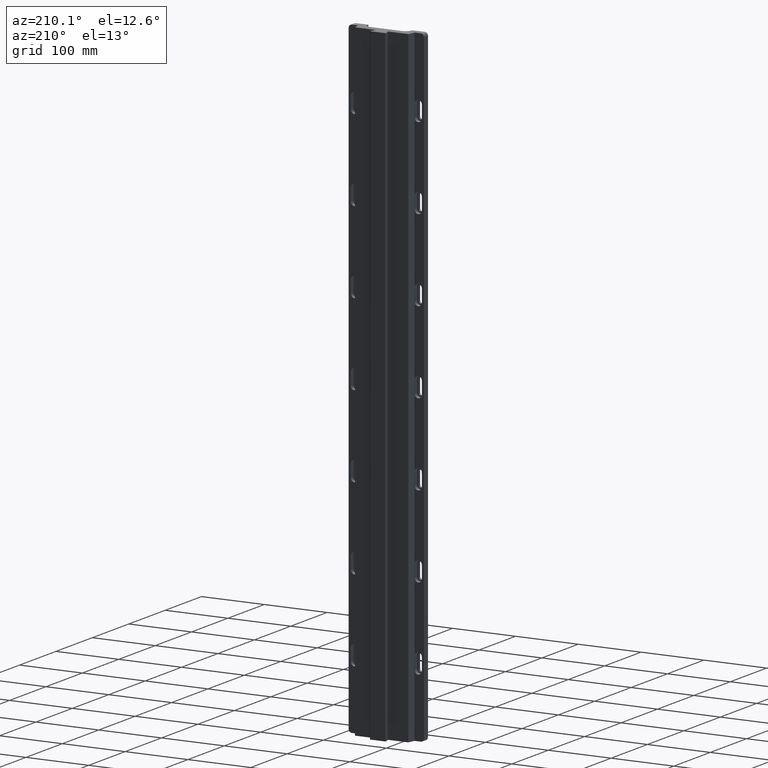
[diagram: clean part render]
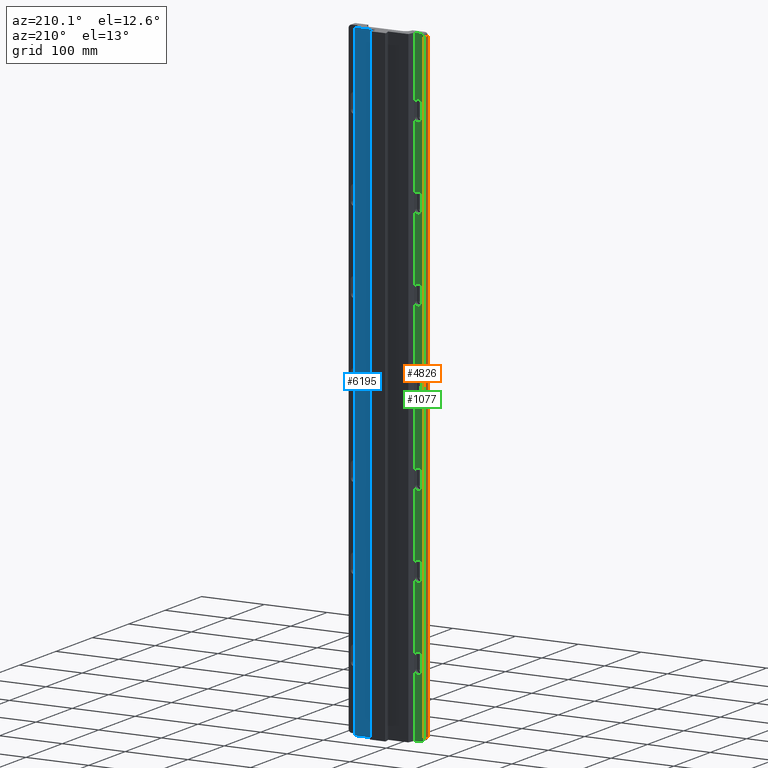
[diagram: same view with three faces highlighted in distinct colors, each labeled with its STEP entity id]
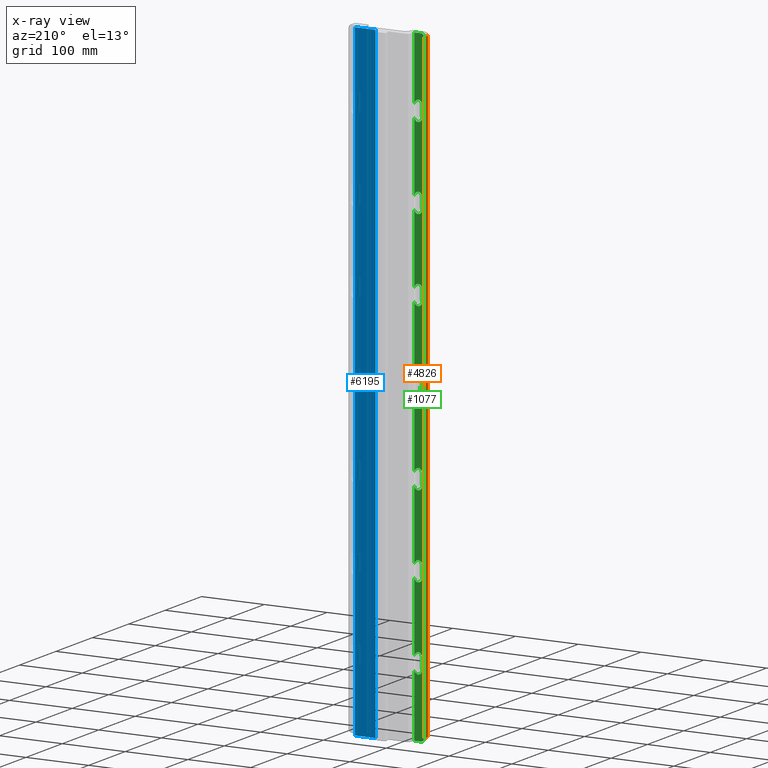
[diagram: x-ray of the same camera — body ghosted, the three highlighted faces saturated]
A machine part, auxiliary view with three faces highlighted in distinct colors.
The next image is the same camera in x-ray (body ghosted, the three faces saturated) — at least one of them is partly hidden behind the body in this view.
Their STEP definitions:

[orange] entity #4826 — the highlighted planar face has unit normal (1, 0, -0).
#19 = VERTEX_POINT ( 'NONE', #5639 ) ;
#113 = LINE ( 'NONE', #4858, #5061 ) ;
#130 = CARTESIAN_POINT ( 'NONE',  ( -60.00000000000000700, -6.938893903907228400E-015, 495.0000000000000000 ) ) ;
#601 = VECTOR ( 'NONE', #2288, 1000.000000000000000 ) ;
#616 = EDGE_LOOP ( 'NONE', ( #909, #4879, #750, #4154 ) ) ;
#665 = CARTESIAN_POINT ( 'NONE',  ( -60.00000000000000700, -6.938893903907228400E-015, 500.0000000000000000 ) ) ;
#750 = ORIENTED_EDGE ( 'NONE', *, *, #5763, .F. ) ;
#909 = ORIENTED_EDGE ( 'NONE', *, *, #1383, .T. ) ;
#1383 = EDGE_CURVE ( 'NONE', #4213, #4868, #113, .T. ) ;
#1503 = AXIS2_PLACEMENT_3D ( 'NONE', #665, #4680, #3115 ) ;
#1582 = CARTESIAN_POINT ( 'NONE',  ( -60.00000000000000700, -11.00000000000000500, 495.0000000000000000 ) ) ;
#1823 = DIRECTION ( 'NONE',  ( -0.0000000000000000000, -0.0000000000000000000, -1.000000000000000000 ) ) ;
#1997 = LINE ( 'NONE', #130, #6242 ) ;
#2179 = DIRECTION ( 'NONE',  ( -0.0000000000000000000, 1.000000000000000000, -0.0000000000000000000 ) ) ;
#2288 = DIRECTION ( 'NONE',  ( -0.0000000000000000000, -0.0000000000000000000, -1.000000000000000000 ) ) ;
#3115 = DIRECTION ( 'NONE',  ( -0.0000000000000000000, 0.0000000000000000000, -1.000000000000000000 ) ) ;
#3644 = VERTEX_POINT ( 'NONE', #1582 ) ;
#4154 = ORIENTED_EDGE ( 'NONE', *, *, #5114, .T. ) ;
#4200 = CARTESIAN_POINT ( 'NONE',  ( -60.00000000000000700, -11.00000000000000500, 500.0000000000000000 ) ) ;
#4213 = VERTEX_POINT ( 'NONE', #5741 ) ;
#4227 = FACE_OUTER_BOUND ( 'NONE', #616, .T. ) ;
#4305 = LINE ( 'NONE', #4200, #601 ) ;
#4608 = LINE ( 'NONE', #6029, #5228 ) ;
#4680 = DIRECTION ( 'NONE',  ( 1.000000000000000000, 0.0000000000000000000, -0.0000000000000000000 ) ) ;
#4826 = ADVANCED_FACE ( 'NONE', ( #4227 ), #6080, .F. ) ;
#4858 = CARTESIAN_POINT ( 'NONE',  ( -60.00000000000000700, -6.938893903907228400E-015, 500.0000000000000000 ) ) ;
#4868 = VERTEX_POINT ( 'NONE', #5680 ) ;
#4879 = ORIENTED_EDGE ( 'NONE', *, *, #5499, .T. ) ;
#5061 = VECTOR ( 'NONE', #1823, 1000.000000000000000 ) ;
#5114 = EDGE_CURVE ( 'NONE', #3644, #4213, #1997, .T. ) ;
#5228 = VECTOR ( 'NONE', #5474, 1000.000000000000000 ) ;
#5474 = DIRECTION ( 'NONE',  ( 0.0000000000000000000, -1.000000000000000000, 0.0000000000000000000 ) ) ;
#5499 = EDGE_CURVE ( 'NONE', #4868, #19, #4608, .T. ) ;
#5639 = CARTESIAN_POINT ( 'NONE',  ( -60.00000000000000700, -11.00000000000000500, -495.0000000000000000 ) ) ;
#5680 = CARTESIAN_POINT ( 'NONE',  ( -60.00000000000000700, -6.938893903907228400E-015, -495.0000000000000000 ) ) ;
#5741 = CARTESIAN_POINT ( 'NONE',  ( -60.00000000000000700, -6.938893903907228400E-015, 495.0000000000000000 ) ) ;
#5763 = EDGE_CURVE ( 'NONE', #3644, #19, #4305, .T. ) ;
#6029 = CARTESIAN_POINT ( 'NONE',  ( -60.00000000000000700, -6.938893903907228400E-015, -495.0000000000000000 ) ) ;
#6080 = PLANE ( 'NONE',  #1503 ) ;
#6242 = VECTOR ( 'NONE', #2179, 1000.000000000000000 ) ;

[blue] entity #6195 — the highlighted planar face has unit normal (0, -1, 0).
#139 = LINE ( 'NONE', #5757, #3761 ) ;
#228 = CARTESIAN_POINT ( 'NONE',  ( 42.50000000000000000, 12.49999999999955200, -500.0000000000000000 ) ) ;
#293 = DIRECTION ( 'NONE',  ( -0.0000000000000000000, -0.0000000000000000000, -1.000000000000000000 ) ) ;
#592 = DIRECTION ( 'NONE',  ( -1.000000000000000000, -2.135044278125300800E-016, 0.0000000000000000000 ) ) ;
#761 = VERTEX_POINT ( 'NONE', #882 ) ;
#882 = CARTESIAN_POINT ( 'NONE',  ( 10.00000000000000400, 12.49999999999954700, -500.0000000000000000 ) ) ;
#1083 = VERTEX_POINT ( 'NONE', #3662 ) ;
#1526 = DIRECTION ( 'NONE',  ( -0.0000000000000000000, -0.0000000000000000000, -1.000000000000000000 ) ) ;
#1821 = ORIENTED_EDGE ( 'NONE', *, *, #5489, .F. ) ;
#1830 = VERTEX_POINT ( 'NONE', #228 ) ;
#1875 = CARTESIAN_POINT ( 'NONE',  ( 42.50000000000000000, 12.49999999999955200, 500.0000000000000000 ) ) ;
#1898 = EDGE_CURVE ( 'NONE', #3863, #1830, #3441, .T. ) ;
#2085 = CARTESIAN_POINT ( 'NONE',  ( 42.50000000000000000, 12.49999999999955200, 500.0000000000000000 ) ) ;
#2104 = ORIENTED_EDGE ( 'NONE', *, *, #5365, .T. ) ;
#2330 = DIRECTION ( 'NONE',  ( -1.000000000000000000, -2.135044278125300800E-016, 0.0000000000000000000 ) ) ;
#2429 = EDGE_CURVE ( 'NONE', #1083, #761, #3093, .T. ) ;
#2946 = VECTOR ( 'NONE', #1526, 1000.000000000000000 ) ;
#3093 = LINE ( 'NONE', #6394, #2946 ) ;
#3268 = VECTOR ( 'NONE', #293, 1000.000000000000000 ) ;
#3441 = LINE ( 'NONE', #1875, #3268 ) ;
#3598 = DIRECTION ( 'NONE',  ( 1.000000000000000000, 2.135044278125300800E-016, 0.0000000000000000000 ) ) ;
#3640 = DIRECTION ( 'NONE',  ( 2.135044278125300800E-016, -1.000000000000000000, 0.0000000000000000000 ) ) ;
#3662 = CARTESIAN_POINT ( 'NONE',  ( 10.00000000000000400, 12.49999999999954700, 500.0000000000000000 ) ) ;
#3761 = VECTOR ( 'NONE', #2330, 1000.000000000000000 ) ;
#3836 = CARTESIAN_POINT ( 'NONE',  ( 42.50000000000000000, 12.49999999999955200, 500.0000000000000000 ) ) ;
#3863 = VERTEX_POINT ( 'NONE', #3836 ) ;
#3910 = VECTOR ( 'NONE', #592, 1000.000000000000000 ) ;
#3914 = ORIENTED_EDGE ( 'NONE', *, *, #1898, .T. ) ;
#4475 = CARTESIAN_POINT ( 'NONE',  ( 42.50000000000000000, 12.49999999999955200, 500.0000000000000000 ) ) ;
#4604 = PLANE ( 'NONE',  #5939 ) ;
#5113 = ORIENTED_EDGE ( 'NONE', *, *, #2429, .F. ) ;
#5217 = FACE_OUTER_BOUND ( 'NONE', #5352, .T. ) ;
#5352 = EDGE_LOOP ( 'NONE', ( #5113, #1821, #3914, #2104 ) ) ;
#5365 = EDGE_CURVE ( 'NONE', #1830, #761, #139, .T. ) ;
#5466 = LINE ( 'NONE', #4475, #3910 ) ;
#5489 = EDGE_CURVE ( 'NONE', #3863, #1083, #5466, .T. ) ;
#5757 = CARTESIAN_POINT ( 'NONE',  ( 42.50000000000000000, 12.49999999999955200, -500.0000000000000000 ) ) ;
#5939 = AXIS2_PLACEMENT_3D ( 'NONE', #2085, #3640, #3598 ) ;
#6195 = ADVANCED_FACE ( 'NONE', ( #5217 ), #4604, .F. ) ;
#6394 = CARTESIAN_POINT ( 'NONE',  ( 10.00000000000000400, 12.49999999999954700, 500.0000000000000000 ) ) ;

[green] entity #1077 — the highlighted planar face has unit normal (0, -1, 0).
#28 = EDGE_CURVE ( 'NONE', #1575, #5647, #5229, .T. ) ;
#30 = EDGE_LOOP ( 'NONE', ( #5106, #4351, #1927, #3034, #1701 ) ) ;
#38 = CARTESIAN_POINT ( 'NONE',  ( -45.10255888325749400, 0.0000000000000000000, 250.0000000000000600 ) ) ;
#40 = AXIS2_PLACEMENT_3D ( 'NONE', #450, #469, #3469 ) ;
#49 = ORIENTED_EDGE ( 'NONE', *, *, #808, .T. ) ;
#67 = AXIS2_PLACEMENT_3D ( 'NONE', #1127, #5100, #674 ) ;
#81 = ORIENTED_EDGE ( 'NONE', *, *, #4197, .F. ) ;
#86 = CARTESIAN_POINT ( 'NONE',  ( -56.60255888325751500, -6.938893903907228400E-015, -10.00000000000000900 ) ) ;
#109 = VECTOR ( 'NONE', #3065, 1000.000000000000000 ) ;
#113 = LINE ( 'NONE', #4858, #5061 ) ;
#121 = FACE_BOUND ( 'NONE', #1625, .T. ) ;
#147 = CARTESIAN_POINT ( 'NONE',  ( -45.00000000000000000, -6.938893903907228400E-015, 500.0000000000000000 ) ) ;
#187 = DIRECTION ( 'NONE',  ( -0.0000000000000000000, 1.000000000000000000, -0.0000000000000000000 ) ) ;
#188 = EDGE_LOOP ( 'NONE', ( #4536, #4174, #945, #3305, #5756 ) ) ;
#235 = ORIENTED_EDGE ( 'NONE', *, *, #5276, .F. ) ;
#240 = ORIENTED_EDGE ( 'NONE', *, *, #6094, .F. ) ;
#253 = DIRECTION ( 'NONE',  ( 0.0000000000000000000, 0.0000000000000000000, -1.000000000000000000 ) ) ;
#269 = CIRCLE ( 'NONE', #2033, 5.750000000000032900 ) ;
#270 = EDGE_CURVE ( 'NONE', #2499, #2931, #4609, .T. ) ;
#271 = CARTESIAN_POINT ( 'NONE',  ( -56.60255888325750800, 0.0000000000000000000, -120.0000000000000000 ) ) ;
#285 = CIRCLE ( 'NONE', #6092, 5.750000000000005300 ) ;
#292 = CIRCLE ( 'NONE', #6328, 5.750000000000032900 ) ;
#319 = EDGE_CURVE ( 'NONE', #526, #1575, #292, .T. ) ;
#325 = DIRECTION ( 'NONE',  ( -0.0000000000000000000, 1.000000000000000000, -0.0000000000000000000 ) ) ;
#371 = EDGE_CURVE ( 'NONE', #2553, #5516, #5533, .T. ) ;
#391 = CARTESIAN_POINT ( 'NONE',  ( -56.60255888325750800, -6.938893903907228400E-015, 249.9999999999999400 ) ) ;
#418 = DIRECTION ( 'NONE',  ( 0.0000000000000000000, 0.0000000000000000000, -1.000000000000000000 ) ) ;
#423 = CARTESIAN_POINT ( 'NONE',  ( -60.00000000000000700, -6.938893903907228400E-015, 500.0000000000000000 ) ) ;
#425 = DIRECTION ( 'NONE',  ( -0.0000000000000000000, 1.000000000000000000, -0.0000000000000000000 ) ) ;
#429 = CARTESIAN_POINT ( 'NONE',  ( -45.10255888325748000, 0.0000000000000000000, 139.9999999999999700 ) ) ;
#450 = CARTESIAN_POINT ( 'NONE',  ( -50.85255888325750800, -6.938893903907228400E-015, 380.0000000000000000 ) ) ;
#469 = DIRECTION ( 'NONE',  ( -0.0000000000000000000, 1.000000000000000000, -0.0000000000000000000 ) ) ;
#493 = VERTEX_POINT ( 'NONE', #3238 ) ;
#526 = VERTEX_POINT ( 'NONE', #1328 ) ;
#532 = DIRECTION ( 'NONE',  ( 1.206764157201254600E-015, 0.0000000000000000000, -1.000000000000000000 ) ) ;
#565 = CIRCLE ( 'NONE', #5960, 5.750000000000005300 ) ;
#577 = VERTEX_POINT ( 'NONE', #391 ) ;
#606 = ORIENTED_EDGE ( 'NONE', *, *, #755, .T. ) ;
#608 = EDGE_CURVE ( 'NONE', #493, #4824, #978, .T. ) ;
#664 = CIRCLE ( 'NONE', #1360, 5.000000000000004400 ) ;
#674 = DIRECTION ( 'NONE',  ( 0.0000000000000000000, 0.0000000000000000000, -1.000000000000000000 ) ) ;
#712 = VERTEX_POINT ( 'NONE', #1221 ) ;
#730 = ORIENTED_EDGE ( 'NONE', *, *, #608, .F. ) ;
#755 = EDGE_CURVE ( 'NONE', #2057, #4868, #1048, .T. ) ;
#808 = EDGE_CURVE ( 'NONE', #4213, #2931, #664, .T. ) ;
#813 = CARTESIAN_POINT ( 'NONE',  ( -55.00000000000000700, -6.938893903907228400E-015, 495.0000000000000000 ) ) ;
#857 = AXIS2_PLACEMENT_3D ( 'NONE', #1005, #2494, #532 ) ;
#869 = VERTEX_POINT ( 'NONE', #2393 ) ;
#887 = EDGE_CURVE ( 'NONE', #3571, #5655, #4605, .T. ) ;
#899 = DIRECTION ( 'NONE',  ( 0.0000000000000000000, 0.0000000000000000000, -1.000000000000000000 ) ) ;
#930 = ORIENTED_EDGE ( 'NONE', *, *, #2819, .F. ) ;
#945 = ORIENTED_EDGE ( 'NONE', *, *, #5517, .F. ) ;
#948 = DIRECTION ( 'NONE',  ( -1.000000000000000000, -0.0000000000000000000, -0.0000000000000000000 ) ) ;
#949 = ORIENTED_EDGE ( 'NONE', *, *, #2607, .F. ) ;
#950 = CARTESIAN_POINT ( 'NONE',  ( -45.00000000000000000, -6.938893903907228400E-015, 500.0000000000000000 ) ) ;
#978 = CIRCLE ( 'NONE', #3124, 5.750000000000012400 ) ;
#979 = CARTESIAN_POINT ( 'NONE',  ( -55.00000000000000700, -6.938893903907228400E-015, -500.0000000000000000 ) ) ;
#992 = AXIS2_PLACEMENT_3D ( 'NONE', #2986, #1569, #2065 ) ;
#1005 = CARTESIAN_POINT ( 'NONE',  ( -50.85255888325750100, -6.938893903907228400E-015, 10.00000000000000900 ) ) ;
#1031 = EDGE_CURVE ( 'NONE', #2150, #5752, #5667, .T. ) ;
#1048 = CIRCLE ( 'NONE', #1907, 5.000000000000004400 ) ;
#1057 = ORIENTED_EDGE ( 'NONE', *, *, #2153, .F. ) ;
#1059 = CARTESIAN_POINT ( 'NONE',  ( -45.10255888325749400, 0.0000000000000000000, 120.0000000000000600 ) ) ;
#1077 = ADVANCED_FACE ( 'NONE', ( #121, #4129, #4294, #2508, #5917, #3819, #2971, #3361 ), #1587, .F. ) ;
#1080 = CARTESIAN_POINT ( 'NONE',  ( -50.85255888325750800, -6.938893903907228400E-015, 244.2500000000000000 ) ) ;
#1100 = VERTEX_POINT ( 'NONE', #5051 ) ;
#1102 = CARTESIAN_POINT ( 'NONE',  ( -50.85255888325750800, -6.938893903907228400E-015, -10.00000000000000900 ) ) ;
#1127 = CARTESIAN_POINT ( 'NONE',  ( -50.85255888325750100, -6.938893903907228400E-015, 140.0000000000000000 ) ) ;
#1175 = CARTESIAN_POINT ( 'NONE',  ( -56.60255888325750800, 0.0000000000000000000, -250.0000000000000000 ) ) ;
#1221 = CARTESIAN_POINT ( 'NONE',  ( -50.85255888325750800, -6.938893903907228400E-015, -275.7500000000000600 ) ) ;
#1236 = CARTESIAN_POINT ( 'NONE',  ( -45.10255888325748000, 0.0000000000000000000, -250.0000000000000600 ) ) ;
#1274 = EDGE_CURVE ( 'NONE', #6059, #2057, #6067, .T. ) ;
#1282 = DIRECTION ( 'NONE',  ( 0.0000000000000000000, 0.0000000000000000000, -1.000000000000000000 ) ) ;
#1287 = DIRECTION ( 'NONE',  ( -0.0000000000000000000, 1.000000000000000000, -0.0000000000000000000 ) ) ;
#1328 = CARTESIAN_POINT ( 'NONE',  ( -50.85255888325750800, -6.938893903907228400E-015, 374.2500000000000000 ) ) ;
#1357 = DIRECTION ( 'NONE',  ( 0.0000000000000000000, 0.0000000000000000000, -1.000000000000000000 ) ) ;
#1360 = AXIS2_PLACEMENT_3D ( 'NONE', #813, #4316, #4768 ) ;
#1383 = EDGE_CURVE ( 'NONE', #4213, #4868, #113, .T. ) ;
#1409 = ORIENTED_EDGE ( 'NONE', *, *, #4874, .F. ) ;
#1422 = DIRECTION ( 'NONE',  ( -0.0000000000000000000, 1.000000000000000000, -0.0000000000000000000 ) ) ;
#1440 = EDGE_CURVE ( 'NONE', #4696, #526, #2966, .T. ) ;
#1455 = VERTEX_POINT ( 'NONE', #5366 ) ;
#1461 = EDGE_CURVE ( 'NONE', #869, #712, #3896, .T. ) ;
#1472 = VERTEX_POINT ( 'NONE', #2450 ) ;
#1490 = DIRECTION ( 'NONE',  ( 3.469446951953612200E-016, 0.0000000000000000000, 1.000000000000000000 ) ) ;
#1504 = DIRECTION ( 'NONE',  ( -0.0000000000000000000, 1.000000000000000000, -0.0000000000000000000 ) ) ;
#1548 = DIRECTION ( 'NONE',  ( -0.0000000000000000000, 1.000000000000000000, -0.0000000000000000000 ) ) ;
#1569 = DIRECTION ( 'NONE',  ( -0.0000000000000000000, 1.000000000000000000, -0.0000000000000000000 ) ) ;
#1575 = VERTEX_POINT ( 'NONE', #3518 ) ;
#1587 = PLANE ( 'NONE',  #1989 ) ;
#1588 = VECTOR ( 'NONE', #6113, 1000.000000000000000 ) ;
#1625 = EDGE_LOOP ( 'NONE', ( #5111, #930, #1057, #2491, #949 ) ) ;
#1634 = LINE ( 'NONE', #1710, #4095 ) ;
#1635 = ORIENTED_EDGE ( 'NONE', *, *, #4884, .F. ) ;
#1653 = CARTESIAN_POINT ( 'NONE',  ( -56.60255888325742300, -6.938893903907228400E-015, 500.0000000000000000 ) ) ;
#1669 = CIRCLE ( 'NONE', #67, 5.750000000000005300 ) ;
#1701 = ORIENTED_EDGE ( 'NONE', *, *, #3833, .F. ) ;
#1710 = CARTESIAN_POINT ( 'NONE',  ( -45.10255888325735900, -6.938893903907228400E-015, 500.0000000000000000 ) ) ;
#1729 = DIRECTION ( 'NONE',  ( 3.469446951953612200E-016, 0.0000000000000000000, 1.000000000000000000 ) ) ;
#1733 = EDGE_CURVE ( 'NONE', #577, #5456, #4668, .T. ) ;
#1745 = ORIENTED_EDGE ( 'NONE', *, *, #887, .F. ) ;
#1760 = ORIENTED_EDGE ( 'NONE', *, *, #319, .F. ) ;
#1764 = VERTEX_POINT ( 'NONE', #1236 ) ;
#1792 = EDGE_CURVE ( 'NONE', #5456, #1455, #269, .T. ) ;
#1819 = CARTESIAN_POINT ( 'NONE',  ( -50.85255888325750800, -6.938893903907228400E-015, -400.0000000000000000 ) ) ;
#1823 = DIRECTION ( 'NONE',  ( -0.0000000000000000000, -0.0000000000000000000, -1.000000000000000000 ) ) ;
#1836 = DIRECTION ( 'NONE',  ( 0.0000000000000000000, 0.0000000000000000000, -1.000000000000000000 ) ) ;
#1839 = CARTESIAN_POINT ( 'NONE',  ( -56.60255888325751500, -6.938893903907228400E-015, 119.9999999999999400 ) ) ;
#1842 = VERTEX_POINT ( 'NONE', #1175 ) ;
#1856 = CIRCLE ( 'NONE', #3933, 5.750000000000032900 ) ;
#1858 = ORIENTED_EDGE ( 'NONE', *, *, #6219, .F. ) ;
#1869 = CARTESIAN_POINT ( 'NONE',  ( -45.10255888325748000, 0.0000000000000000000, -380.0000000000000600 ) ) ;
#1907 = AXIS2_PLACEMENT_3D ( 'NONE', #6234, #1287, #6255 ) ;
#1909 = ORIENTED_EDGE ( 'NONE', *, *, #1383, .F. ) ;
#1927 = ORIENTED_EDGE ( 'NONE', *, *, #3089, .F. ) ;
#1940 = DIRECTION ( 'NONE',  ( -0.0000000000000000000, 1.000000000000000000, -0.0000000000000000000 ) ) ;
#1989 = AXIS2_PLACEMENT_3D ( 'NONE', #2613, #6097, #3126 ) ;
#1994 = VERTEX_POINT ( 'NONE', #2467 ) ;
#1998 = ORIENTED_EDGE ( 'NONE', *, *, #4414, .F. ) ;
#2001 = AXIS2_PLACEMENT_3D ( 'NONE', #3730, #3683, #4752 ) ;
#2024 = EDGE_LOOP ( 'NONE', ( #81, #4173, #1760, #5479, #3040 ) ) ;
#2025 = CARTESIAN_POINT ( 'NONE',  ( -56.60255888325750800, 0.0000000000000000000, -380.0000000000000000 ) ) ;
#2033 = AXIS2_PLACEMENT_3D ( 'NONE', #3185, #187, #253 ) ;
#2057 = VERTEX_POINT ( 'NONE', #979 ) ;
#2065 = DIRECTION ( 'NONE',  ( 0.0000000000000000000, 0.0000000000000000000, -1.000000000000000000 ) ) ;
#2092 = VERTEX_POINT ( 'NONE', #4938 ) ;
#2107 = LINE ( 'NONE', #2416, #2423 ) ;
#2137 = DIRECTION ( 'NONE',  ( -0.0000000000000000000, 1.000000000000000000, -0.0000000000000000000 ) ) ;
#2150 = VERTEX_POINT ( 'NONE', #1059 ) ;
#2153 = EDGE_CURVE ( 'NONE', #712, #6191, #5048, .T. ) ;
#2175 = CARTESIAN_POINT ( 'NONE',  ( -56.60255888325747300, -6.938893903907228400E-015, 500.0000000000000000 ) ) ;
#2226 = CARTESIAN_POINT ( 'NONE',  ( -50.85255888325750800, -6.938893903907228400E-015, 114.2499999999999900 ) ) ;
#2231 = DIRECTION ( 'NONE',  ( -1.000000000000000000, -0.0000000000000000000, -0.0000000000000000000 ) ) ;
#2240 = ORIENTED_EDGE ( 'NONE', *, *, #3489, .F. ) ;
#2252 = EDGE_LOOP ( 'NONE', ( #2240, #235, #1745, #5275, #240 ) ) ;
#2280 = CARTESIAN_POINT ( 'NONE',  ( -56.60255888325733800, -6.938893903907228400E-015, 500.0000000000000000 ) ) ;
#2308 = CIRCLE ( 'NONE', #3365, 5.750000000000032900 ) ;
#2316 = CIRCLE ( 'NONE', #4009, 5.750000000000032900 ) ;
#2393 = CARTESIAN_POINT ( 'NONE',  ( -45.10255888325749400, 0.0000000000000000000, -269.9999999999999400 ) ) ;
#2398 = EDGE_LOOP ( 'NONE', ( #5809, #1409, #730, #4573, #1998 ) ) ;
#2416 = CARTESIAN_POINT ( 'NONE',  ( -45.10255888325744400, -6.938893903907228400E-015, 500.0000000000000000 ) ) ;
#2423 = VECTOR ( 'NONE', #3406, 1000.000000000000000 ) ;
#2450 = CARTESIAN_POINT ( 'NONE',  ( -56.60255888325750800, 0.0000000000000000000, 10.00000000000000900 ) ) ;
#2460 = CARTESIAN_POINT ( 'NONE',  ( -56.60255888325738000, -6.938893903907228400E-015, 500.0000000000000000 ) ) ;
#2467 = CARTESIAN_POINT ( 'NONE',  ( -45.10255888325749400, 0.0000000000000000000, -9.999999999999953800 ) ) ;
#2491 = ORIENTED_EDGE ( 'NONE', *, *, #1461, .F. ) ;
#2493 = VECTOR ( 'NONE', #3434, 1000.000000000000000 ) ;
#2494 = DIRECTION ( 'NONE',  ( -0.0000000000000000000, 1.000000000000000000, -0.0000000000000000000 ) ) ;
#2499 = VERTEX_POINT ( 'NONE', #147 ) ;
#2508 = FACE_OUTER_BOUND ( 'NONE', #4559, .T. ) ;
#2521 = LINE ( 'NONE', #3178, #5772 ) ;
#2533 = DIRECTION ( 'NONE',  ( -3.469446951953631400E-016, 0.0000000000000000000, -1.000000000000000000 ) ) ;
#2549 = DIRECTION ( 'NONE',  ( -3.469446951953631400E-016, 0.0000000000000000000, -1.000000000000000000 ) ) ;
#2553 = VERTEX_POINT ( 'NONE', #4093 ) ;
#2596 = VECTOR ( 'NONE', #5149, 1000.000000000000000 ) ;
#2607 = EDGE_CURVE ( 'NONE', #1764, #869, #4024, .T. ) ;
#2613 = CARTESIAN_POINT ( 'NONE',  ( -60.00000000000000700, -6.938893903907228400E-015, 500.0000000000000000 ) ) ;
#2616 = DIRECTION ( 'NONE',  ( 0.0000000000000000000, 0.0000000000000000000, -1.000000000000000000 ) ) ;
#2744 = CARTESIAN_POINT ( 'NONE',  ( -45.10255888325721700, -6.938893903907228400E-015, 500.0000000000000000 ) ) ;
#2780 = EDGE_CURVE ( 'NONE', #5501, #4696, #2107, .T. ) ;
#2803 = DIRECTION ( 'NONE',  ( -0.0000000000000000000, 1.000000000000000000, -0.0000000000000000000 ) ) ;
#2819 = EDGE_CURVE ( 'NONE', #6191, #1842, #5050, .T. ) ;
#2849 = LINE ( 'NONE', #5084, #4005 ) ;
#2868 = VERTEX_POINT ( 'NONE', #3794 ) ;
#2877 = DIRECTION ( 'NONE',  ( 0.0000000000000000000, 0.0000000000000000000, -1.000000000000000000 ) ) ;
#2884 = CARTESIAN_POINT ( 'NONE',  ( -45.10255888325749400, 0.0000000000000000000, -399.9999999999999400 ) ) ;
#2916 = CARTESIAN_POINT ( 'NONE',  ( -50.85255888325750800, -6.938893903907228400E-015, -270.0000000000000000 ) ) ;
#2931 = VERTEX_POINT ( 'NONE', #6284 ) ;
#2963 = ORIENTED_EDGE ( 'NONE', *, *, #1274, .T. ) ;
#2966 = CIRCLE ( 'NONE', #40, 5.750000000000032900 ) ;
#2971 = FACE_BOUND ( 'NONE', #2252, .T. ) ;
#2975 = CARTESIAN_POINT ( 'NONE',  ( -50.85255888325750800, -6.938893903907228400E-015, -270.0000000000000000 ) ) ;
#2986 = CARTESIAN_POINT ( 'NONE',  ( -50.85255888325750800, -6.938893903907228400E-015, 120.0000000000000000 ) ) ;
#2991 = EDGE_CURVE ( 'NONE', #4237, #2092, #6041, .T. ) ;
#3034 = ORIENTED_EDGE ( 'NONE', *, *, #1031, .F. ) ;
#3040 = ORIENTED_EDGE ( 'NONE', *, *, #2780, .F. ) ;
#3065 = DIRECTION ( 'NONE',  ( 3.469446951953612200E-016, 0.0000000000000000000, 1.000000000000000000 ) ) ;
#3089 = EDGE_CURVE ( 'NONE', #5752, #4237, #565, .T. ) ;
#3121 = CARTESIAN_POINT ( 'NONE',  ( -50.85255888325750800, -6.938893903907228400E-015, 250.0000000000000000 ) ) ;
#3124 = AXIS2_PLACEMENT_3D ( 'NONE', #4903, #1940, #6404 ) ;
#3126 = DIRECTION ( 'NONE',  ( 0.0000000000000000000, -0.0000000000000000000, -1.000000000000000000 ) ) ;
#3148 = CIRCLE ( 'NONE', #2001, 5.750000000000032900 ) ;
#3161 = VECTOR ( 'NONE', #6316, 1000.000000000000000 ) ;
#3178 = CARTESIAN_POINT ( 'NONE',  ( -56.60255888325728800, -6.938893903907228400E-015, 500.0000000000000000 ) ) ;
#3179 = EDGE_LOOP ( 'NONE', ( #1635, #5596, #6203, #3934, #1858 ) ) ;
#3185 = CARTESIAN_POINT ( 'NONE',  ( -50.85255888325750100, -6.938893903907228400E-015, 270.0000000000000000 ) ) ;
#3192 = DIRECTION ( 'NONE',  ( -3.469446951953631400E-016, 0.0000000000000000000, -1.000000000000000000 ) ) ;
#3200 = VECTOR ( 'NONE', #6405, 1000.000000000000000 ) ;
#3226 = AXIS2_PLACEMENT_3D ( 'NONE', #3121, #2137, #4644 ) ;
#3238 = CARTESIAN_POINT ( 'NONE',  ( -50.85255888325750800, -6.938893903907228400E-015, -15.75000000000002100 ) ) ;
#3255 = AXIS2_PLACEMENT_3D ( 'NONE', #2916, #3492, #3890 ) ;
#3278 = EDGE_CURVE ( 'NONE', #2499, #6059, #6346, .T. ) ;
#3287 = LINE ( 'NONE', #4038, #4133 ) ;
#3298 = DIRECTION ( 'NONE',  ( -0.0000000000000000000, 1.000000000000000000, -0.0000000000000000000 ) ) ;
#3303 = LINE ( 'NONE', #2280, #4785 ) ;
#3305 = ORIENTED_EDGE ( 'NONE', *, *, #5819, .F. ) ;
#3336 = VECTOR ( 'NONE', #3192, 1000.000000000000000 ) ;
#3351 = DIRECTION ( 'NONE',  ( 0.0000000000000000000, 0.0000000000000000000, -1.000000000000000000 ) ) ;
#3354 = AXIS2_PLACEMENT_3D ( 'NONE', #3930, #1422, #2877 ) ;
#3361 = FACE_BOUND ( 'NONE', #3179, .T. ) ;
#3365 = AXIS2_PLACEMENT_3D ( 'NONE', #5384, #3870, #418 ) ;
#3390 = CIRCLE ( 'NONE', #4600, 5.750000000000032900 ) ;
#3406 = DIRECTION ( 'NONE',  ( -3.469446951953631400E-016, 0.0000000000000000000, -1.000000000000000000 ) ) ;
#3434 = DIRECTION ( 'NONE',  ( 3.469446951953612200E-016, 0.0000000000000000000, 1.000000000000000000 ) ) ;
#3458 = LINE ( 'NONE', #4517, #3200 ) ;
#3469 = DIRECTION ( 'NONE',  ( 0.0000000000000000000, 0.0000000000000000000, -1.000000000000000000 ) ) ;
#3489 = EDGE_CURVE ( 'NONE', #6319, #1100, #5342, .T. ) ;
#3492 = DIRECTION ( 'NONE',  ( -0.0000000000000000000, 1.000000000000000000, -0.0000000000000000000 ) ) ;
#3518 = CARTESIAN_POINT ( 'NONE',  ( -56.60255888325751500, -6.938893903907228400E-015, 380.0000000000000000 ) ) ;
#3528 = CARTESIAN_POINT ( 'NONE',  ( -50.85255888325750800, -6.938893903907228400E-015, -405.7500000000000600 ) ) ;
#3536 = CIRCLE ( 'NONE', #5712, 5.750000000000012400 ) ;
#3547 = DIRECTION ( 'NONE',  ( -0.0000000000000000000, 1.000000000000000000, -0.0000000000000000000 ) ) ;
#3567 = VERTEX_POINT ( 'NONE', #3528 ) ;
#3571 = VERTEX_POINT ( 'NONE', #5495 ) ;
#3617 = VERTEX_POINT ( 'NONE', #1080 ) ;
#3663 = DIRECTION ( 'NONE',  ( 3.469446951953612200E-016, 0.0000000000000000000, 1.000000000000000000 ) ) ;
#3683 = DIRECTION ( 'NONE',  ( -0.0000000000000000000, 1.000000000000000000, -0.0000000000000000000 ) ) ;
#3724 = CARTESIAN_POINT ( 'NONE',  ( -56.60255888325720300, -6.938893903907228400E-015, 500.0000000000000000 ) ) ;
#3729 = CARTESIAN_POINT ( 'NONE',  ( -50.85255888325750100, -6.938893903907228400E-015, -380.0000000000000000 ) ) ;
#3730 = CARTESIAN_POINT ( 'NONE',  ( -50.85255888325750100, -6.938893903907228400E-015, 400.0000000000000000 ) ) ;
#3747 = CARTESIAN_POINT ( 'NONE',  ( -50.85255888325750800, -6.938893903907228400E-015, -140.0000000000000000 ) ) ;
#3787 = DIRECTION ( 'NONE',  ( -0.0000000000000000000, 1.000000000000000000, -0.0000000000000000000 ) ) ;
#3794 = CARTESIAN_POINT ( 'NONE',  ( -45.10255888325748000, 0.0000000000000000000, 9.999999999999953800 ) ) ;
#3819 = FACE_BOUND ( 'NONE', #30, .T. ) ;
#3833 = EDGE_CURVE ( 'NONE', #3867, #2150, #1634, .T. ) ;
#3858 = ORIENTED_EDGE ( 'NONE', *, *, #3278, .T. ) ;
#3867 = VERTEX_POINT ( 'NONE', #429 ) ;
#3870 = DIRECTION ( 'NONE',  ( -0.0000000000000000000, 1.000000000000000000, -0.0000000000000000000 ) ) ;
#3874 = EDGE_CURVE ( 'NONE', #3567, #2553, #2316, .T. ) ;
#3890 = DIRECTION ( 'NONE',  ( 0.0000000000000000000, 0.0000000000000000000, -1.000000000000000000 ) ) ;
#3896 = CIRCLE ( 'NONE', #3255, 5.750000000000032900 ) ;
#3923 = VERTEX_POINT ( 'NONE', #1869 ) ;
#3930 = CARTESIAN_POINT ( 'NONE',  ( -50.85255888325750100, -6.938893903907228400E-015, -120.0000000000000000 ) ) ;
#3933 = AXIS2_PLACEMENT_3D ( 'NONE', #5672, #325, #1282 ) ;
#3934 = ORIENTED_EDGE ( 'NONE', *, *, #4651, .F. ) ;
#3959 = CARTESIAN_POINT ( 'NONE',  ( -50.85255888325750800, -6.938893903907228400E-015, 380.0000000000000000 ) ) ;
#3988 = DIRECTION ( 'NONE',  ( 0.0000000000000000000, 0.0000000000000000000, -1.000000000000000000 ) ) ;
#4005 = VECTOR ( 'NONE', #2533, 1000.000000000000000 ) ;
#4009 = AXIS2_PLACEMENT_3D ( 'NONE', #1819, #3298, #5787 ) ;
#4016 = CARTESIAN_POINT ( 'NONE',  ( -56.60255888325750800, 0.0000000000000000000, 270.0000000000000000 ) ) ;
#4024 = LINE ( 'NONE', #2744, #3336 ) ;
#4038 = CARTESIAN_POINT ( 'NONE',  ( -45.10255888325717400, -6.938893903907228400E-015, 500.0000000000000000 ) ) ;
#4093 = CARTESIAN_POINT ( 'NONE',  ( -56.60255888325751500, -6.938893903907228400E-015, -400.0000000000000000 ) ) ;
#4095 = VECTOR ( 'NONE', #4277, 1000.000000000000000 ) ;
#4129 = FACE_BOUND ( 'NONE', #2398, .T. ) ;
#4133 = VECTOR ( 'NONE', #2549, 1000.000000000000000 ) ;
#4136 = DIRECTION ( 'NONE',  ( -0.0000000000000000000, 1.000000000000000000, -0.0000000000000000000 ) ) ;
#4173 = ORIENTED_EDGE ( 'NONE', *, *, #28, .F. ) ;
#4174 = ORIENTED_EDGE ( 'NONE', *, *, #1733, .F. ) ;
#4197 = EDGE_CURVE ( 'NONE', #5647, #5501, #3148, .T. ) ;
#4203 = LINE ( 'NONE', #5164, #1588 ) ;
#4213 = VERTEX_POINT ( 'NONE', #5741 ) ;
#4221 = VECTOR ( 'NONE', #948, 1000.000000000000000 ) ;
#4237 = VERTEX_POINT ( 'NONE', #1839 ) ;
#4277 = DIRECTION ( 'NONE',  ( -3.469446951953631400E-016, 0.0000000000000000000, -1.000000000000000000 ) ) ;
#4294 = FACE_BOUND ( 'NONE', #188, .T. ) ;
#4316 = DIRECTION ( 'NONE',  ( -0.0000000000000000000, 1.000000000000000000, -0.0000000000000000000 ) ) ;
#4351 = ORIENTED_EDGE ( 'NONE', *, *, #2991, .F. ) ;
#4414 = EDGE_CURVE ( 'NONE', #2868, #1994, #2849, .T. ) ;
#4415 = VECTOR ( 'NONE', #1490, 1000.000000000000000 ) ;
#4517 = CARTESIAN_POINT ( 'NONE',  ( -45.10255888325726700, -6.938893903907228400E-015, 500.0000000000000000 ) ) ;
#4536 = ORIENTED_EDGE ( 'NONE', *, *, #1792, .F. ) ;
#4559 = EDGE_LOOP ( 'NONE', ( #2963, #606, #1909, #49, #4618, #3858 ) ) ;
#4566 = EDGE_CURVE ( 'NONE', #1842, #1764, #1856, .T. ) ;
#4573 = ORIENTED_EDGE ( 'NONE', *, *, #5180, .F. ) ;
#4600 = AXIS2_PLACEMENT_3D ( 'NONE', #3729, #6281, #1357 ) ;
#4603 = CIRCLE ( 'NONE', #857, 5.750000000000012400 ) ;
#4605 = CIRCLE ( 'NONE', #5651, 5.750000000000005300 ) ;
#4609 = LINE ( 'NONE', #423, #4221 ) ;
#4618 = ORIENTED_EDGE ( 'NONE', *, *, #270, .F. ) ;
#4620 = CIRCLE ( 'NONE', #5928, 5.750000000000005300 ) ;
#4644 = DIRECTION ( 'NONE',  ( 0.0000000000000000000, 0.0000000000000000000, -1.000000000000000000 ) ) ;
#4651 = EDGE_CURVE ( 'NONE', #5080, #3567, #2308, .T. ) ;
#4668 = LINE ( 'NONE', #1653, #109 ) ;
#4690 = CIRCLE ( 'NONE', #3226, 5.750000000000005300 ) ;
#4696 = VERTEX_POINT ( 'NONE', #6364 ) ;
#4752 = DIRECTION ( 'NONE',  ( 0.0000000000000000000, 0.0000000000000000000, -1.000000000000000000 ) ) ;
#4768 = DIRECTION ( 'NONE',  ( 0.0000000000000000000, 0.0000000000000000000, -1.000000000000000000 ) ) ;
#4785 = VECTOR ( 'NONE', #5739, 1000.000000000000000 ) ;
#4824 = VERTEX_POINT ( 'NONE', #86 ) ;
#4858 = CARTESIAN_POINT ( 'NONE',  ( -60.00000000000000700, -6.938893903907228400E-015, 500.0000000000000000 ) ) ;
#4868 = VERTEX_POINT ( 'NONE', #5680 ) ;
#4874 = EDGE_CURVE ( 'NONE', #4824, #1472, #3303, .T. ) ;
#4884 = EDGE_CURVE ( 'NONE', #5516, #3923, #3390, .T. ) ;
#4903 = CARTESIAN_POINT ( 'NONE',  ( -50.85255888325750800, -6.938893903907228400E-015, -10.00000000000000900 ) ) ;
#4938 = CARTESIAN_POINT ( 'NONE',  ( -56.60255888325750800, 0.0000000000000000000, 140.0000000000000000 ) ) ;
#4953 = EDGE_CURVE ( 'NONE', #5239, #3571, #4620, .T. ) ;
#4964 = DIRECTION ( 'NONE',  ( 0.0000000000000000000, 0.0000000000000000000, -1.000000000000000000 ) ) ;
#5048 = CIRCLE ( 'NONE', #6075, 5.750000000000032900 ) ;
#5050 = LINE ( 'NONE', #6385, #2493 ) ;
#5051 = CARTESIAN_POINT ( 'NONE',  ( -45.10255888325748000, 0.0000000000000000000, -120.0000000000000600 ) ) ;
#5061 = VECTOR ( 'NONE', #1823, 1000.000000000000000 ) ;
#5080 = VERTEX_POINT ( 'NONE', #2884 ) ;
#5084 = CARTESIAN_POINT ( 'NONE',  ( -45.10255888325731600, -6.938893903907228400E-015, 500.0000000000000000 ) ) ;
#5100 = DIRECTION ( 'NONE',  ( -0.0000000000000000000, 1.000000000000000000, -0.0000000000000000000 ) ) ;
#5106 = ORIENTED_EDGE ( 'NONE', *, *, #6140, .F. ) ;
#5111 = ORIENTED_EDGE ( 'NONE', *, *, #4566, .F. ) ;
#5149 = DIRECTION ( 'NONE',  ( 3.469446951953612200E-016, 0.0000000000000000000, 1.000000000000000000 ) ) ;
#5164 = CARTESIAN_POINT ( 'NONE',  ( -45.10255888325740200, -6.938893903907228400E-015, 500.0000000000000000 ) ) ;
#5180 = EDGE_CURVE ( 'NONE', #1994, #493, #3536, .T. ) ;
#5221 = CARTESIAN_POINT ( 'NONE',  ( -45.10255888325749400, 0.0000000000000000000, -139.9999999999999700 ) ) ;
#5229 = LINE ( 'NONE', #2175, #2596 ) ;
#5239 = VERTEX_POINT ( 'NONE', #5221 ) ;
#5249 = CARTESIAN_POINT ( 'NONE',  ( -56.60255888325750800, 0.0000000000000000000, 400.0000000000000000 ) ) ;
#5275 = ORIENTED_EDGE ( 'NONE', *, *, #4953, .F. ) ;
#5276 = EDGE_CURVE ( 'NONE', #5655, #6319, #2521, .T. ) ;
#5342 = CIRCLE ( 'NONE', #3354, 5.750000000000005300 ) ;
#5366 = CARTESIAN_POINT ( 'NONE',  ( -45.10255888325748000, 0.0000000000000000000, 269.9999999999999400 ) ) ;
#5384 = CARTESIAN_POINT ( 'NONE',  ( -50.85255888325750800, -6.938893903907228400E-015, -400.0000000000000000 ) ) ;
#5454 = CARTESIAN_POINT ( 'NONE',  ( -45.10255888325748000, 0.0000000000000000000, 399.9999999999999400 ) ) ;
#5456 = VERTEX_POINT ( 'NONE', #4016 ) ;
#5479 = ORIENTED_EDGE ( 'NONE', *, *, #1440, .F. ) ;
#5495 = CARTESIAN_POINT ( 'NONE',  ( -50.85255888325750800, -6.938893903907228400E-015, -145.7500000000000300 ) ) ;
#5501 = VERTEX_POINT ( 'NONE', #5454 ) ;
#5512 = CARTESIAN_POINT ( 'NONE',  ( -45.00000000000000000, -6.938893903907228400E-015, -500.0000000000000000 ) ) ;
#5516 = VERTEX_POINT ( 'NONE', #2025 ) ;
#5517 = EDGE_CURVE ( 'NONE', #3617, #577, #4690, .T. ) ;
#5523 = CARTESIAN_POINT ( 'NONE',  ( -50.85255888325750800, -6.938893903907228400E-015, 120.0000000000000000 ) ) ;
#5533 = LINE ( 'NONE', #3724, #5848 ) ;
#5568 = CARTESIAN_POINT ( 'NONE',  ( -56.60255888325750800, -6.938893903907228400E-015, -269.9999999999998900 ) ) ;
#5596 = ORIENTED_EDGE ( 'NONE', *, *, #371, .F. ) ;
#5627 = CARTESIAN_POINT ( 'NONE',  ( -56.60255888325751500, -6.938893903907228400E-015, -140.0000000000000000 ) ) ;
#5647 = VERTEX_POINT ( 'NONE', #5249 ) ;
#5651 = AXIS2_PLACEMENT_3D ( 'NONE', #5867, #425, #899 ) ;
#5653 = CARTESIAN_POINT ( 'NONE',  ( -60.00000000000000700, -6.938893903907228400E-015, -500.0000000000000000 ) ) ;
#5655 = VERTEX_POINT ( 'NONE', #5627 ) ;
#5667 = CIRCLE ( 'NONE', #992, 5.750000000000005300 ) ;
#5672 = CARTESIAN_POINT ( 'NONE',  ( -50.85255888325750100, -6.938893903907228400E-015, -250.0000000000000000 ) ) ;
#5680 = CARTESIAN_POINT ( 'NONE',  ( -60.00000000000000700, -6.938893903907228400E-015, -495.0000000000000000 ) ) ;
#5712 = AXIS2_PLACEMENT_3D ( 'NONE', #1102, #4136, #6126 ) ;
#5739 = DIRECTION ( 'NONE',  ( 3.469446951953612200E-016, 0.0000000000000000000, 1.000000000000000000 ) ) ;
#5741 = CARTESIAN_POINT ( 'NONE',  ( -60.00000000000000700, -6.938893903907228400E-015, 495.0000000000000000 ) ) ;
#5752 = VERTEX_POINT ( 'NONE', #2226 ) ;
#5753 = VECTOR ( 'NONE', #2231, 1000.000000000000000 ) ;
#5756 = ORIENTED_EDGE ( 'NONE', *, *, #6282, .F. ) ;
#5764 = CARTESIAN_POINT ( 'NONE',  ( -50.85255888325750800, -6.938893903907228400E-015, 250.0000000000000000 ) ) ;
#5772 = VECTOR ( 'NONE', #1729, 1000.000000000000000 ) ;
#5787 = DIRECTION ( 'NONE',  ( 0.0000000000000000000, 0.0000000000000000000, -1.000000000000000000 ) ) ;
#5809 = ORIENTED_EDGE ( 'NONE', *, *, #6112, .F. ) ;
#5819 = EDGE_CURVE ( 'NONE', #6093, #3617, #285, .T. ) ;
#5848 = VECTOR ( 'NONE', #3663, 1000.000000000000000 ) ;
#5867 = CARTESIAN_POINT ( 'NONE',  ( -50.85255888325750800, -6.938893903907228400E-015, -140.0000000000000000 ) ) ;
#5917 = FACE_BOUND ( 'NONE', #2024, .T. ) ;
#5928 = AXIS2_PLACEMENT_3D ( 'NONE', #3747, #3787, #1836 ) ;
#5960 = AXIS2_PLACEMENT_3D ( 'NONE', #5523, #1548, #2616 ) ;
#6041 = LINE ( 'NONE', #2460, #4415 ) ;
#6059 = VERTEX_POINT ( 'NONE', #5512 ) ;
#6067 = LINE ( 'NONE', #5653, #5753 ) ;
#6075 = AXIS2_PLACEMENT_3D ( 'NONE', #2975, #3547, #3988 ) ;
#6092 = AXIS2_PLACEMENT_3D ( 'NONE', #5764, #2803, #3351 ) ;
#6093 = VERTEX_POINT ( 'NONE', #38 ) ;
#6094 = EDGE_CURVE ( 'NONE', #1100, #5239, #3458, .T. ) ;
#6097 = DIRECTION ( 'NONE',  ( 0.0000000000000000000, -1.000000000000000000, 0.0000000000000000000 ) ) ;
#6112 = EDGE_CURVE ( 'NONE', #1472, #2868, #4603, .T. ) ;
#6113 = DIRECTION ( 'NONE',  ( -3.469446951953631400E-016, 0.0000000000000000000, -1.000000000000000000 ) ) ;
#6126 = DIRECTION ( 'NONE',  ( 0.0000000000000000000, 0.0000000000000000000, -1.000000000000000000 ) ) ;
#6140 = EDGE_CURVE ( 'NONE', #2092, #3867, #1669, .T. ) ;
#6191 = VERTEX_POINT ( 'NONE', #5568 ) ;
#6203 = ORIENTED_EDGE ( 'NONE', *, *, #3874, .F. ) ;
#6219 = EDGE_CURVE ( 'NONE', #3923, #5080, #3287, .T. ) ;
#6234 = CARTESIAN_POINT ( 'NONE',  ( -55.00000000000000700, -6.938893903907228400E-015, -495.0000000000000000 ) ) ;
#6255 = DIRECTION ( 'NONE',  ( 0.0000000000000000000, 0.0000000000000000000, -1.000000000000000000 ) ) ;
#6281 = DIRECTION ( 'NONE',  ( -0.0000000000000000000, 1.000000000000000000, -0.0000000000000000000 ) ) ;
#6282 = EDGE_CURVE ( 'NONE', #1455, #6093, #4203, .T. ) ;
#6284 = CARTESIAN_POINT ( 'NONE',  ( -55.00000000000000700, -6.938893903907228400E-015, 500.0000000000000000 ) ) ;
#6316 = DIRECTION ( 'NONE',  ( -0.0000000000000000000, -0.0000000000000000000, -1.000000000000000000 ) ) ;
#6319 = VERTEX_POINT ( 'NONE', #271 ) ;
#6328 = AXIS2_PLACEMENT_3D ( 'NONE', #3959, #1504, #4964 ) ;
#6346 = LINE ( 'NONE', #950, #3161 ) ;
#6364 = CARTESIAN_POINT ( 'NONE',  ( -45.10255888325749400, 0.0000000000000000000, 380.0000000000000600 ) ) ;
#6385 = CARTESIAN_POINT ( 'NONE',  ( -56.60255888325724500, -6.938893903907228400E-015, 500.0000000000000000 ) ) ;
#6404 = DIRECTION ( 'NONE',  ( 0.0000000000000000000, 0.0000000000000000000, -1.000000000000000000 ) ) ;
#6405 = DIRECTION ( 'NONE',  ( -3.469446951953631400E-016, 0.0000000000000000000, -1.000000000000000000 ) ) ;